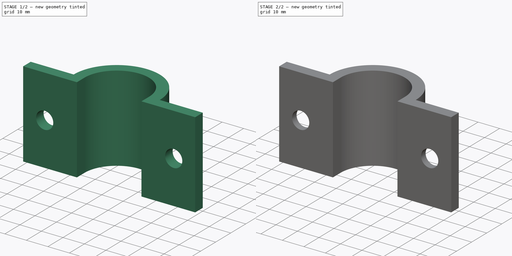
[diagram: build sequence overview — one tinted view per stage of 2, left to right]
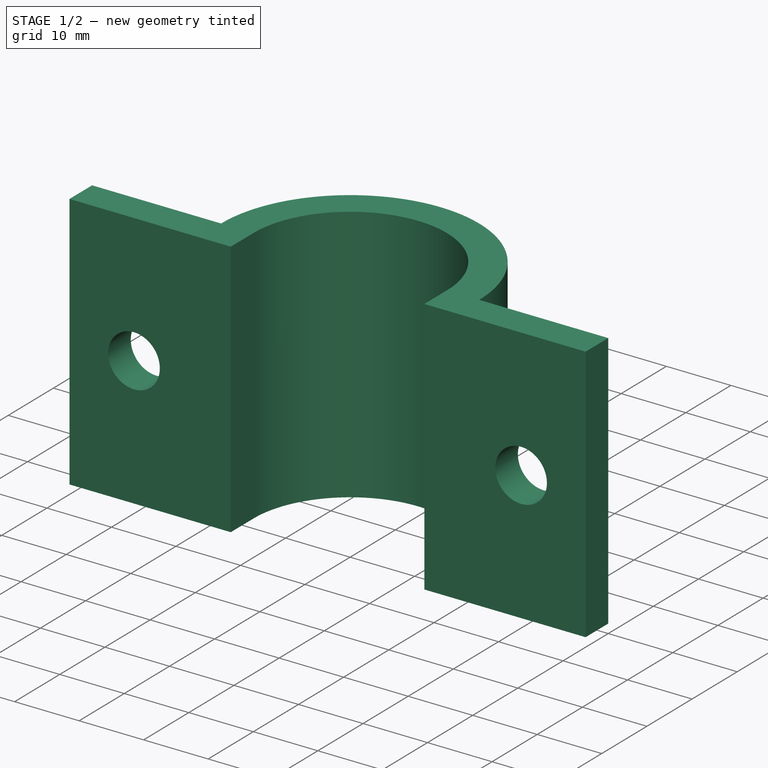
[diagram: stage 1 of 2 — iso view after this stage's code; geometry added in this stage tinted green]
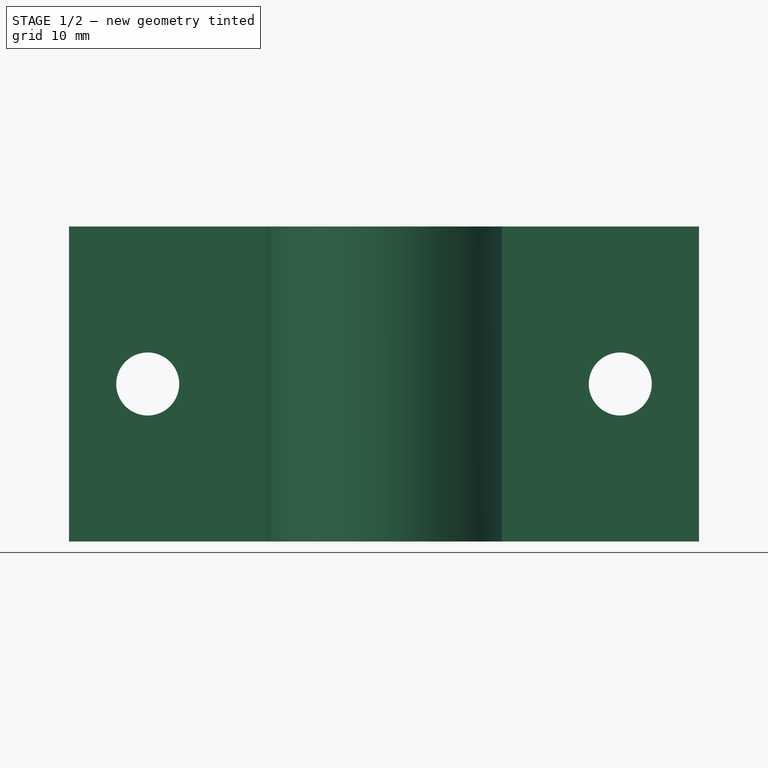
[diagram: stage 1 of 2 — front view after this stage's code; geometry added in this stage tinted green]
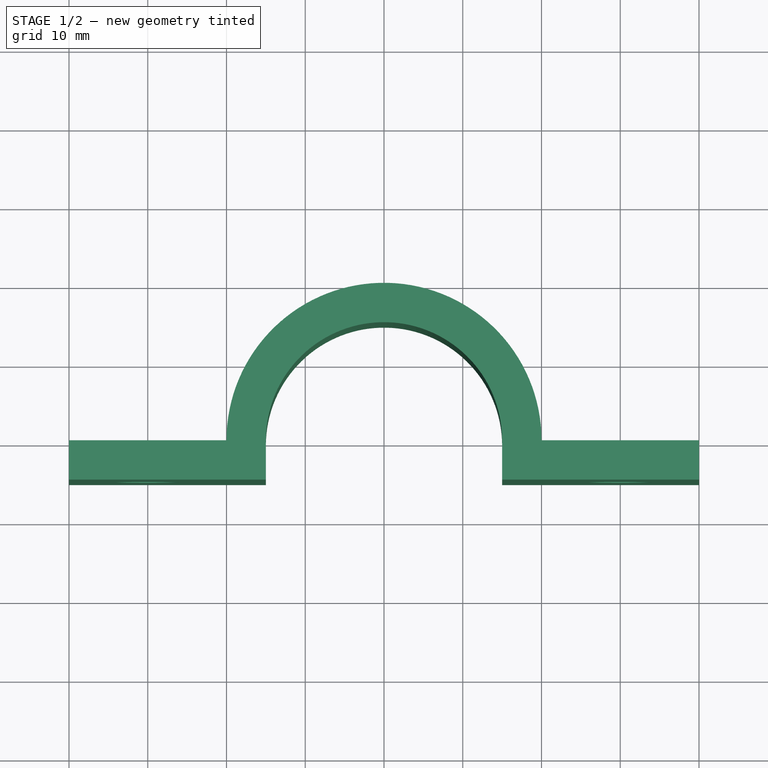
[diagram: stage 1 of 2 — top view after this stage's code; geometry added in this stage tinted green]
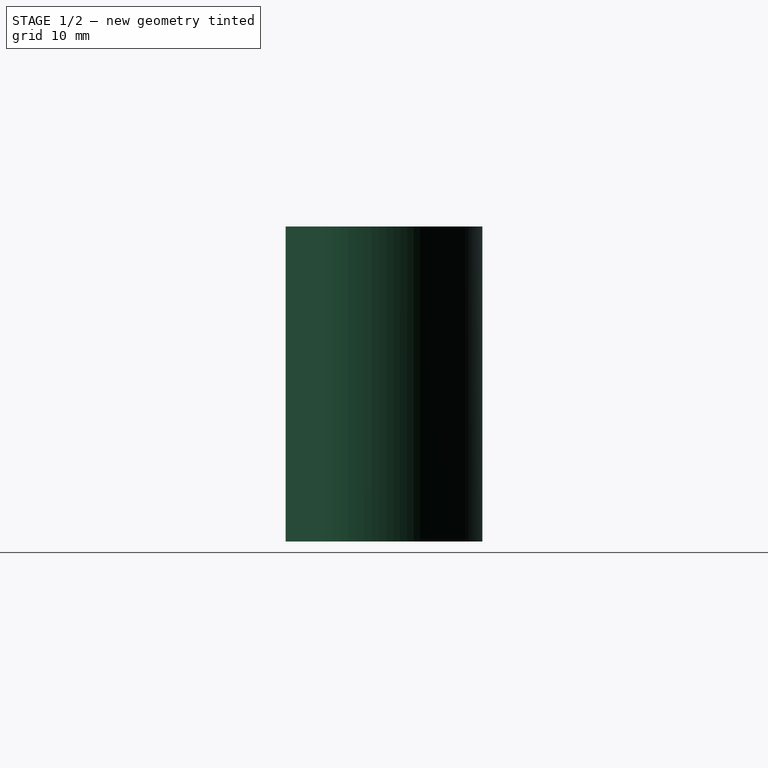
[diagram: stage 1 of 2 — right view after this stage's code; geometry added in this stage tinted green]
FCSTD DOCUMENT  (FreeCAD 0.16R6707 (Git))
Label: Brida_d30
License: CreativeCommons Attribution-ShareAlike
LicenseURL: http://creativecommons.org/licenses/by-sa/4.0/
objects: Sketcher::SketchObject×2, PartDesign::Pad×1, PartDesign::Pocket×1, PartDesign::Chamfer×1
note: 7 computed .brp shape members not serialized (recipe doc carries the construction recipe); baked Part::Feature solids carry a one-line shape summary decoded from their .brp

FEATURE [Sketcher::SketchObject] Sketch  label="Boceto_Brida"
  sketch-geometry (11):
    g0: LineSegment StartX=-40 StartY=0 StartZ=0 EndX=-20 EndY=0 EndZ=0
    g1: LineSegment StartX=20 StartY=0 StartZ=0 EndX=40 EndY=0 EndZ=0
    g2: ArcOfCircle CenterX=0 CenterY=0 CenterZ=0 NormalX=0 NormalY=0 NormalZ=1 Radius=20 StartAngle=0 EndAngle=3.14159
    g3: ArcOfCircle CenterX=0 CenterY=0 CenterZ=0 NormalX=0 NormalY=0 NormalZ=1 Radius=15 StartAngle=0 EndAngle=3.14159
    g4: LineSegment StartX=-15 StartY=0 StartZ=0 EndX=-15 EndY=-5 EndZ=0
    g5: LineSegment StartX=15 StartY=0 StartZ=0 EndX=15 EndY=-5 EndZ=0
    g6: LineSegment StartX=15 StartY=-5 StartZ=0 EndX=40 EndY=-5 EndZ=0
    g7: LineSegment StartX=40 StartY=-5 StartZ=0 EndX=40 EndY=0 EndZ=0
    g8: LineSegment StartX=-15 StartY=-5 StartZ=0 EndX=-40 EndY=-5 EndZ=0
    g9: LineSegment StartX=-40 StartY=-5 StartZ=0 EndX=-40 EndY=0 EndZ=0
    g10: LineSegment [constr] StartX=-20 StartY=0 StartZ=0 EndX=-15 EndY=0 EndZ=0
  constraints (33):
    c: Horizontal(g0)
    c: Horizontal(g1)
    c: Coincident(g2,g0)
    c: Coincident(g1,g2)
    c: Perpendicular(g2,g0)
    c: Perpendicular(g2,g1)
    c: Coincident(g2,g3)
    c: Vertical(g4)
    c: Coincident(g3,g5)
    c: Coincident(g3,g4)
    c: Tangent(g4,g3,g4) = -1.5708
    c: Equal(g5,g4)
    c: Horizontal(g6)
    c: Coincident(g6,g7)
    c: Horizontal(g8)
    c: Coincident(g8,g9)
    c: Coincident(g0,g9)
    c: Coincident(g1,g7)
    c: Coincident(g5,g6)
    c: Coincident(g4,g8)
    c: Equal(g9,g7)
    c: Equal(g8,g6)
    c: Perpendicular(g0,g9)
    c: Perpendicular(g1,g7)
    c: Parallel(g4,g5)
    c: Coincident(g2,g-1)
    c: Horizontal(g10)
    c: Equal(g9,g10)
    c: Coincident(g3,g10)
    c: Coincident(g0,g10)
    c: DistanceX(g10,g10) = 5
    c: Radius(g3) = 15
    c: DistanceX(g0,g0) = 20
FEATURE [PartDesign::Pad] Pad  label="Brida"
  Length = 40
  Length2 = 100
  Midplane = true
  Sketch = -> Sketch
  Type = 0
FEATURE [Sketcher::SketchObject] Sketch001  label="Boceto_taladros"
  Placement = pos=(0,-5,0) rot=(1,0,0;1.5708rad)
  Support = -> Pad [Face3]
  sketch-geometry (2):
    g0: Circle CenterX=-30 CenterY=0 CenterZ=0 NormalX=0 NormalY=0 NormalZ=1 Radius=4
    g1: Circle CenterX=30 CenterY=0 CenterZ=0 NormalX=0 NormalY=0 NormalZ=1 Radius=4
  constraints (5):
    c: Equal(g0,g1)
    c: Symmetric(g0,g1,g-2)
    c: DistanceX(g0,g-1) = 30
    c: DistanceY(g-1,g0) = 0
    c: Radius(g0) = 4
FEATURE [PartDesign::Pocket] Pocket  label="Brida_taladrada"
  Length = 5
  Sketch = -> Sketch001
  Type = 1
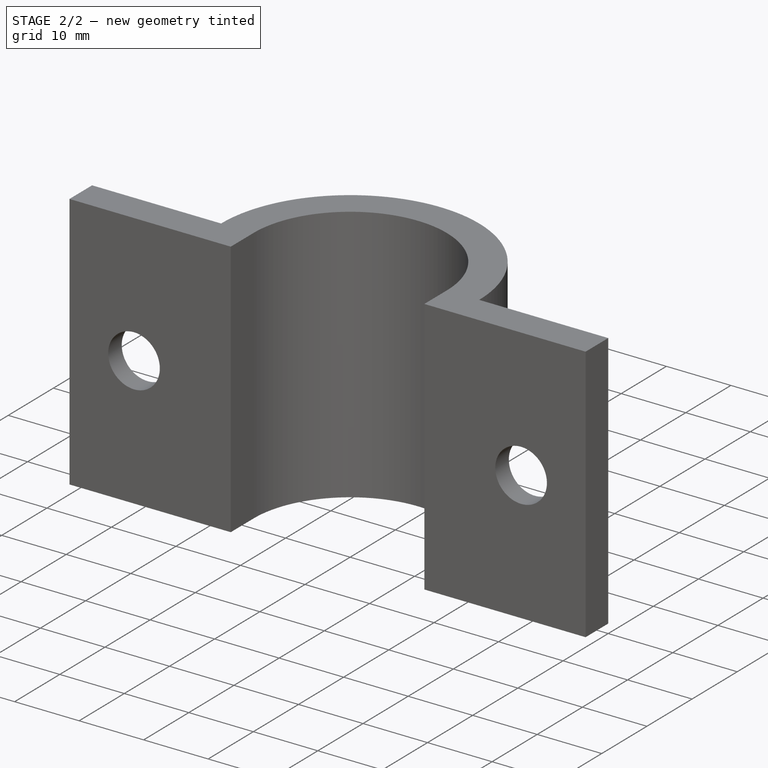
[diagram: stage 2 of 2 — iso view after this stage's code; geometry added in this stage tinted green]
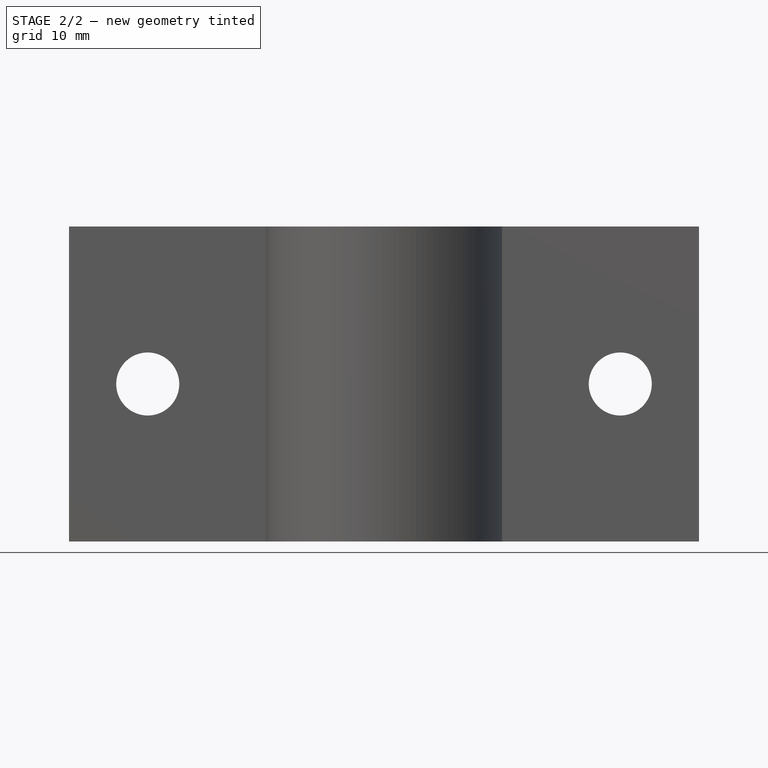
[diagram: stage 2 of 2 — front view after this stage's code; geometry added in this stage tinted green]
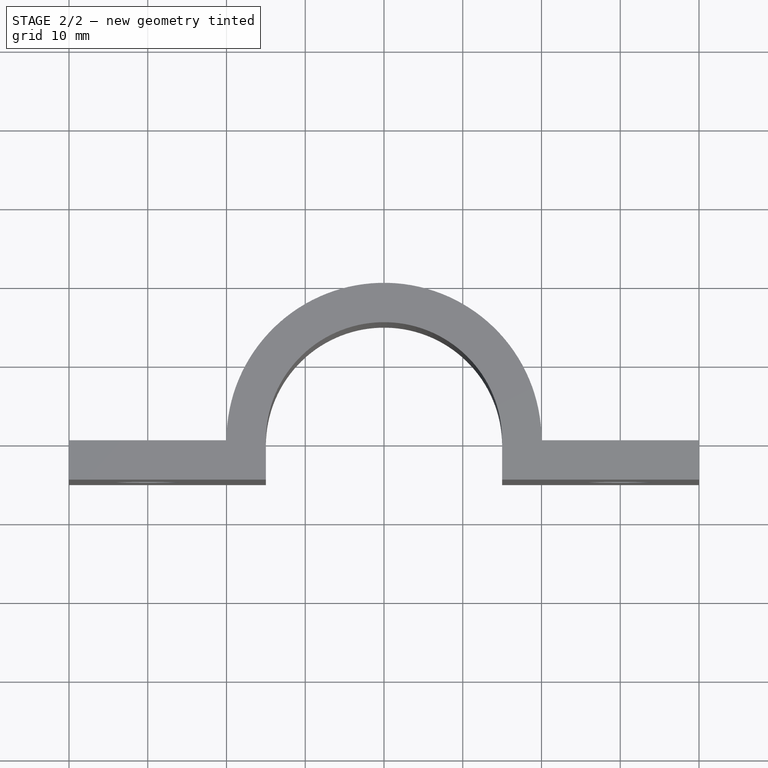
[diagram: stage 2 of 2 — top view after this stage's code; geometry added in this stage tinted green]
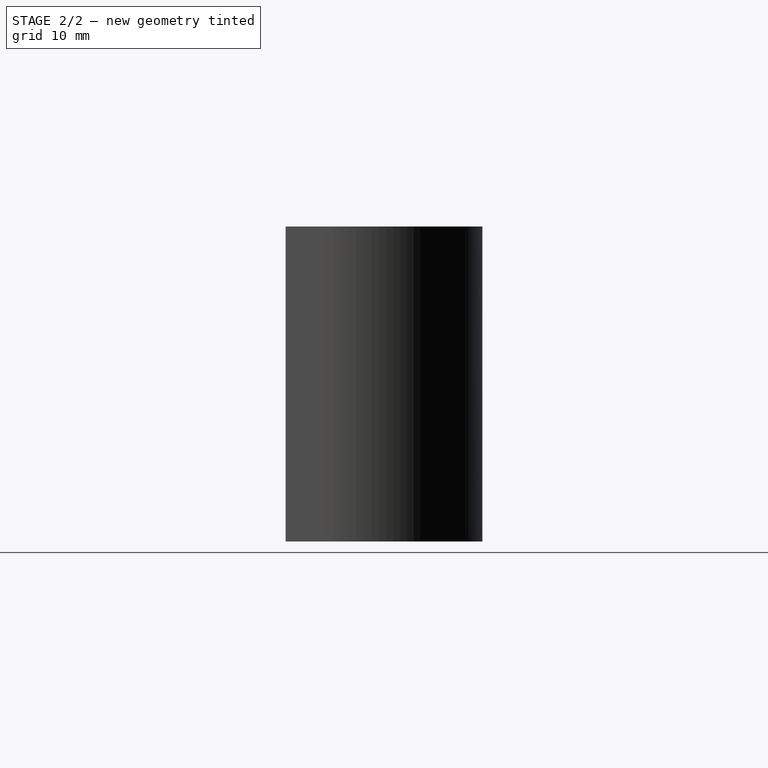
[diagram: stage 2 of 2 — right view after this stage's code; geometry added in this stage tinted green]
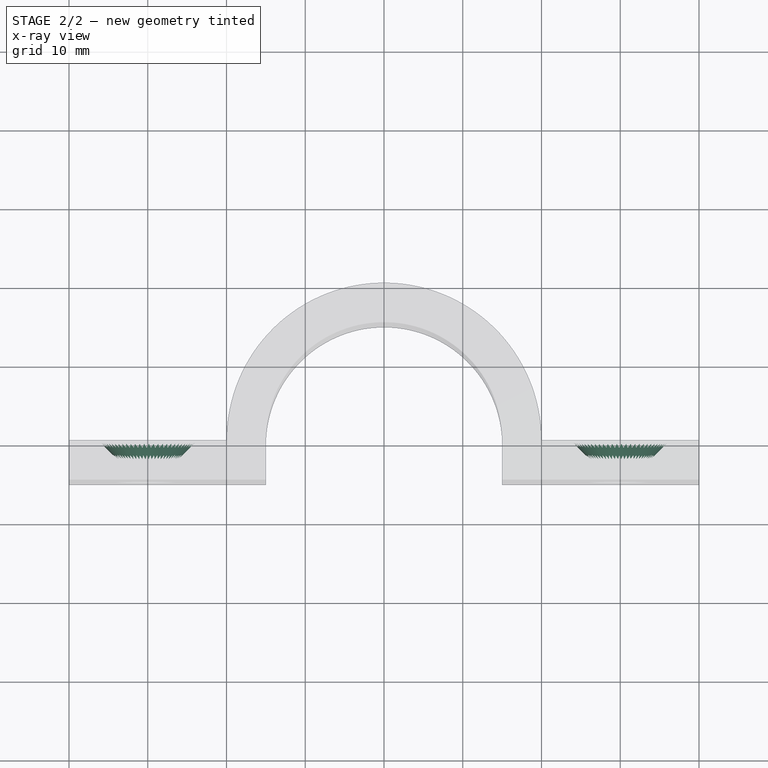
[diagram: stage 2 of 2 — x-ray composite at the top view; earlier geometry ghosted, this stage's added geometry solid]
FEATURE [PartDesign::Chamfer] Chamfer  label="Brida001"
  Base = -> Pocket [Edge34,Edge31]
  Size = 2
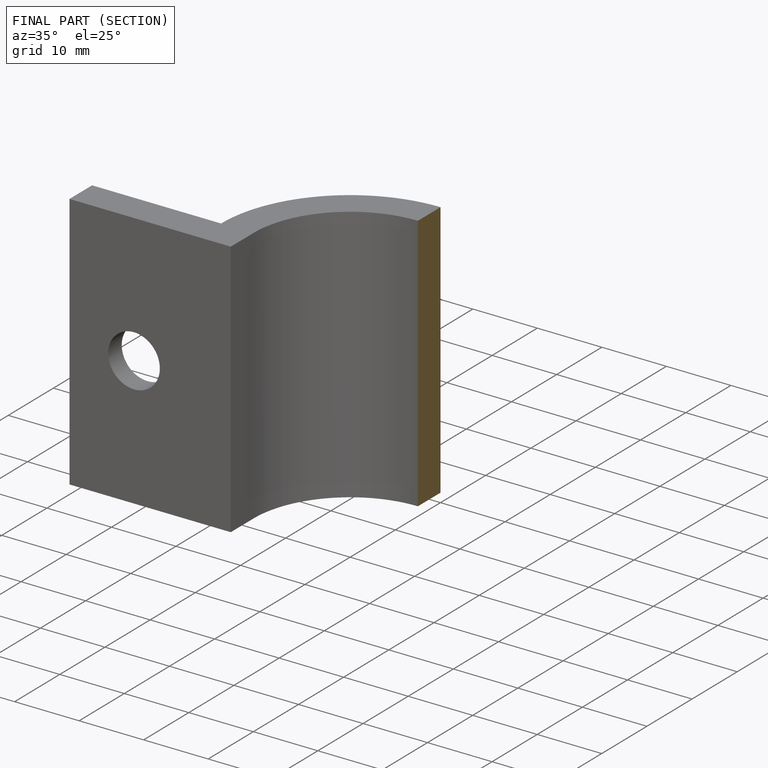
[diagram: finished part — half-section view (interior)]
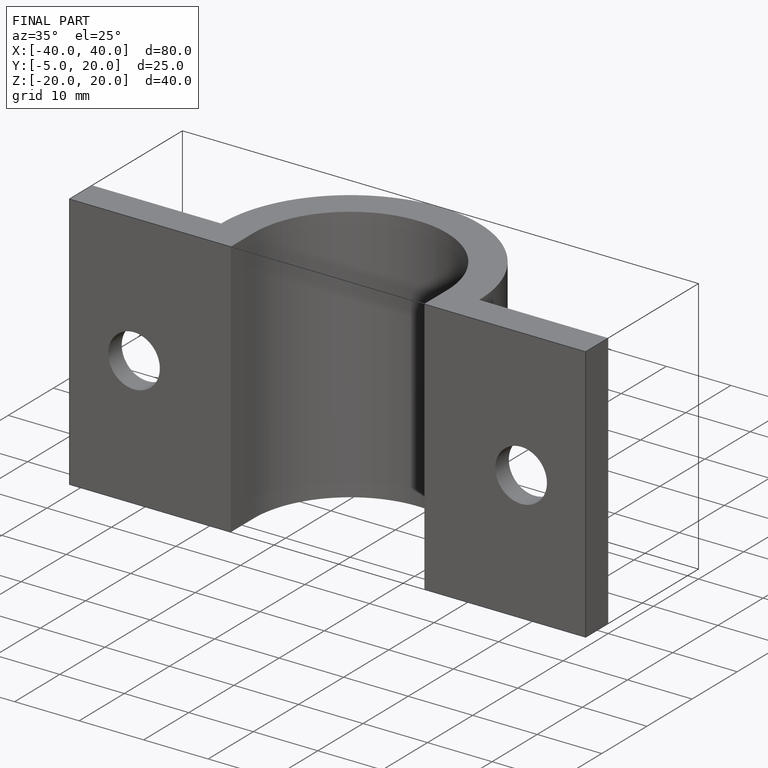
[diagram: finished part — iso view with bounding-box wireframe]
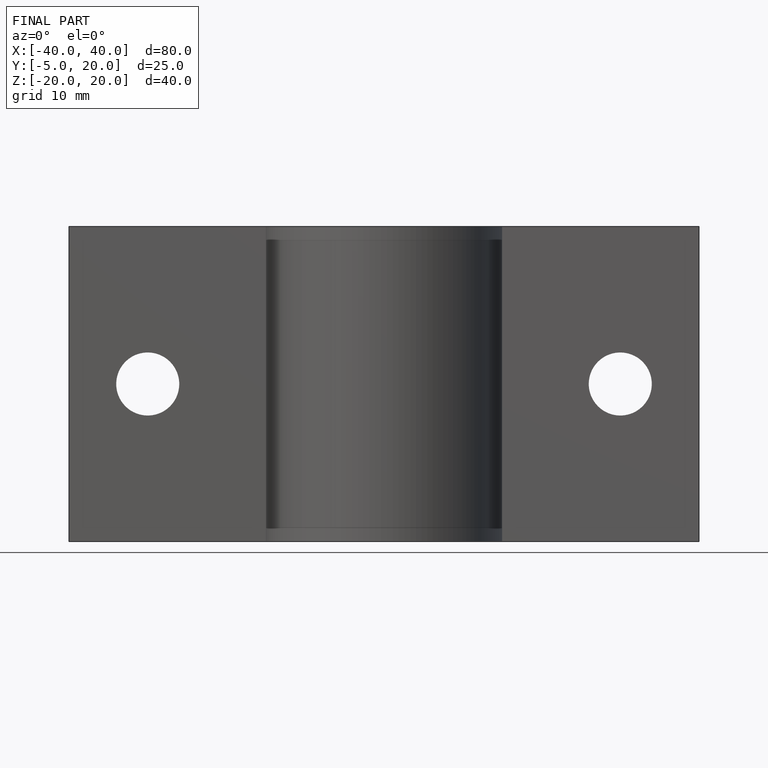
[diagram: finished part — front view with bounding-box wireframe]
